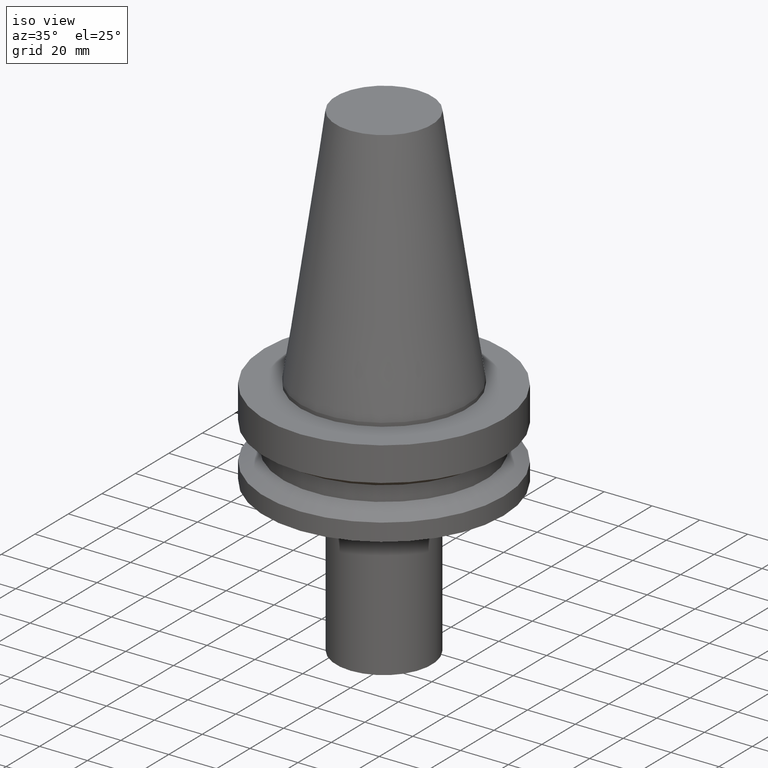
[diagram: clean part render]
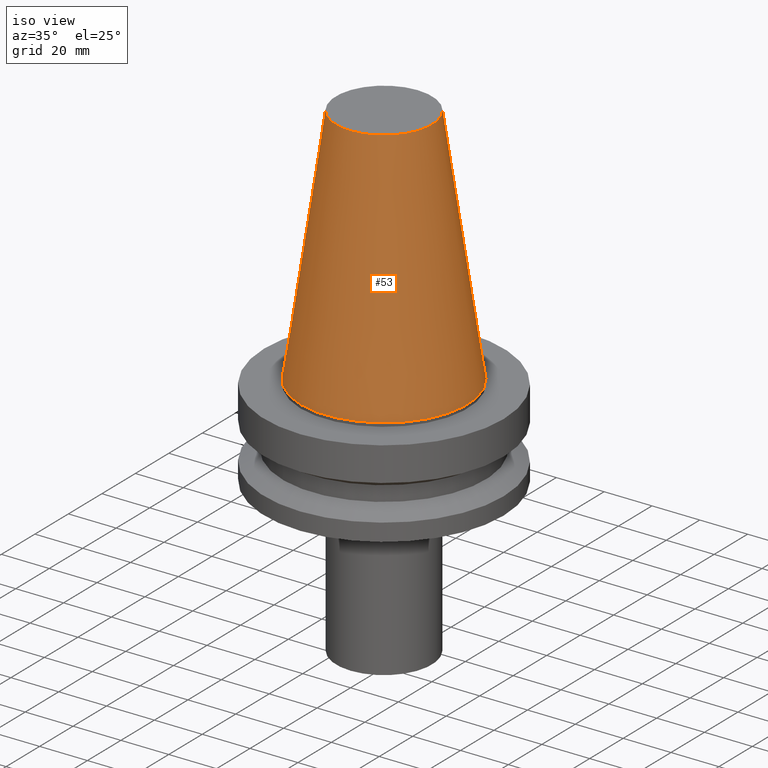
[diagram: same view with one face highlighted and labeled with its STEP entity id]
A machine part, iso view. The second image highlights one B-rep face of the part: STEP entity #53.
In plain terms, the highlighted conical surface has half-angle 8.297 deg.
Its self-contained STEP definition (entity closure, byte-faithful):
#53=ADVANCED_FACE('Unnamed[1]',(#140,#141),#142,.T.);
#72=EDGE_CURVE('Unnamed[1]',#169,#169,#170,.T.);
#111=EDGE_CURVE('Unnamed[1]',#230,#230,#231,.T.);
#140=FACE_BOUND('',#257,.T.);
#141=FACE_BOUND('',#258,.T.);
#142=CONICAL_SURFACE('',#259,27.5020833325942,0.144812498253158);
#169=VERTEX_POINT('',#293);
#170=CIRCLE('',#294,34.925);
#230=VERTEX_POINT('',#369);
#231=CIRCLE('',#370,20.0791666651884);
#257=EDGE_LOOP('',(#393));
#258=EDGE_LOOP('',(#394));
#259=AXIS2_PLACEMENT_3D('',#395,#396,#397);
#293=CARTESIAN_POINT('',(-4.30483861169435E-031,34.925,4.27707894602213E-015));
#294=AXIS2_PLACEMENT_3D('',#423,#424,#425);
#369=CARTESIAN_POINT('',(-6.23345220766002E-015,20.0791666651884,101.8));
#370=AXIS2_PLACEMENT_3D('',#493,#494,#495);
#393=ORIENTED_EDGE('',*,*,#72,.F.);
#394=ORIENTED_EDGE('',*,*,#111,.T.);
#395=CARTESIAN_POINT('',(-3.11672610383001E-015,-6.23345220766002E-015,50.8999999999999));
#396=DIRECTION('',(6.12323399573677E-017,1.22464679914735E-016,-1.0));
#397=DIRECTION('',(-1.23259516440783E-032,1.0,1.22464679914735E-016));
#423=CARTESIAN_POINT('',(0.0,0.0,0.0));
#424=DIRECTION('',(6.12323399573677E-017,1.22464679914735E-016,-1.0));
#425=DIRECTION('',(-1.23259516440783E-032,1.0,1.22464679914735E-016));
#493=CARTESIAN_POINT('',(-6.23345220766002E-015,-1.246690441532E-014,101.8));
#494=DIRECTION('',(6.12323399573677E-017,1.22464679914735E-016,-1.0));
#495=DIRECTION('',(-1.23259516440783E-032,1.0,1.22464679914735E-016));